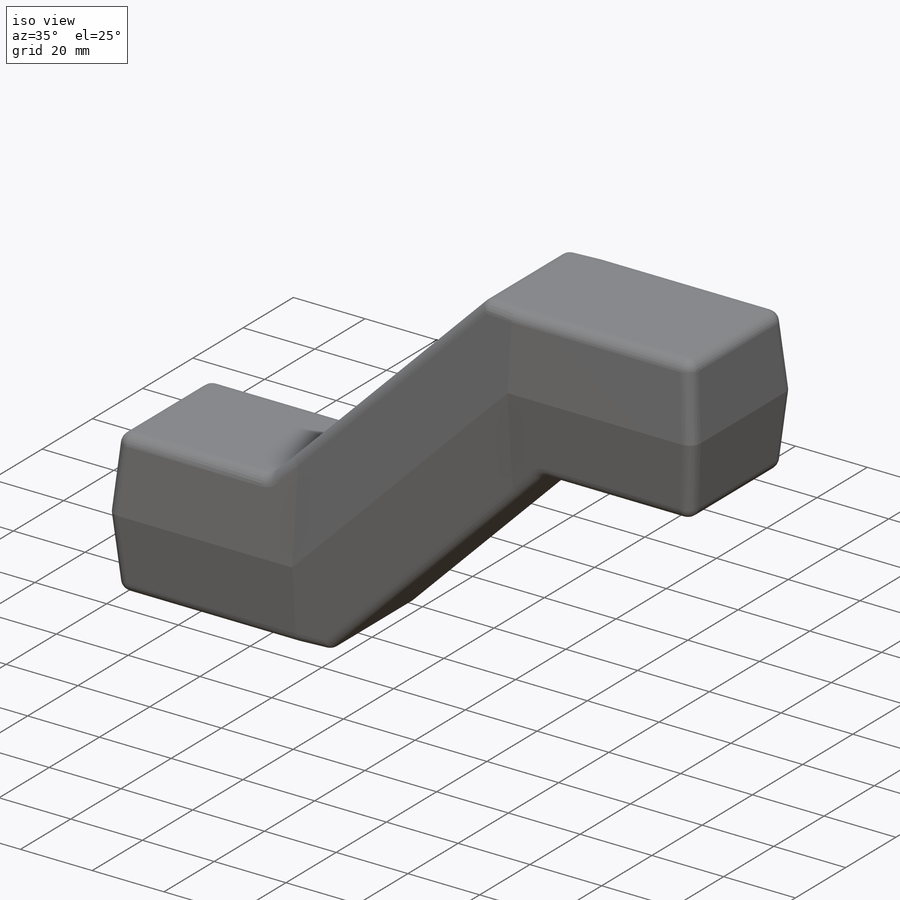
[diagram: iso view]
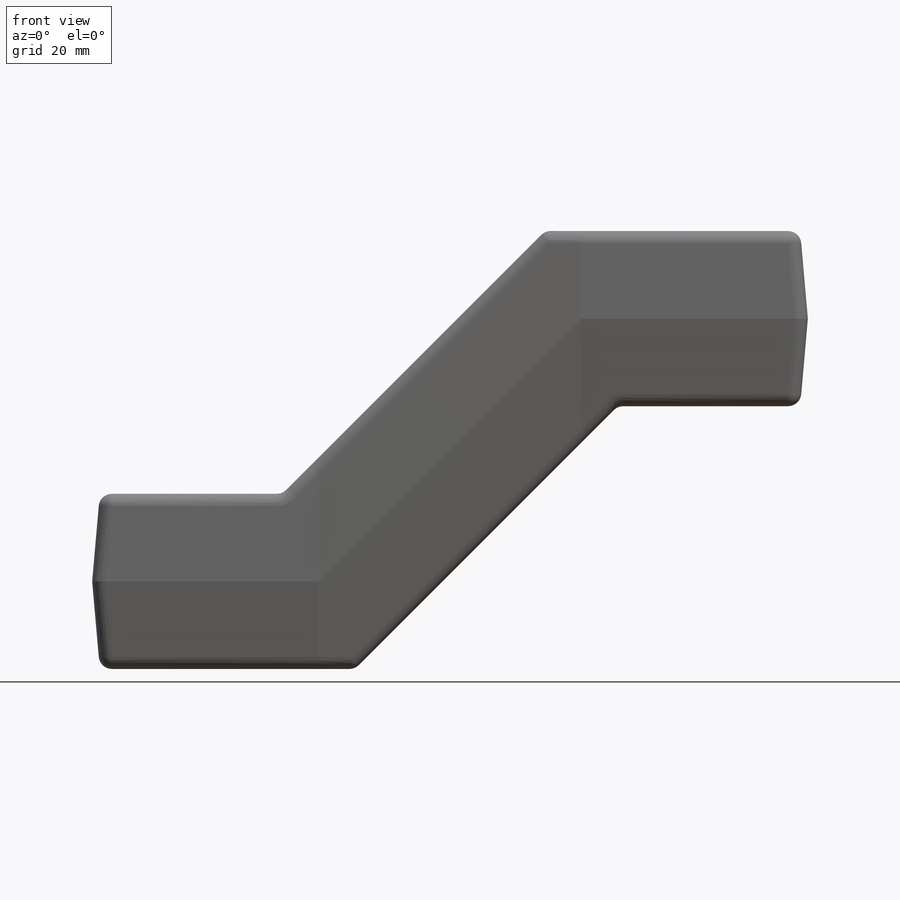
[diagram: front view]
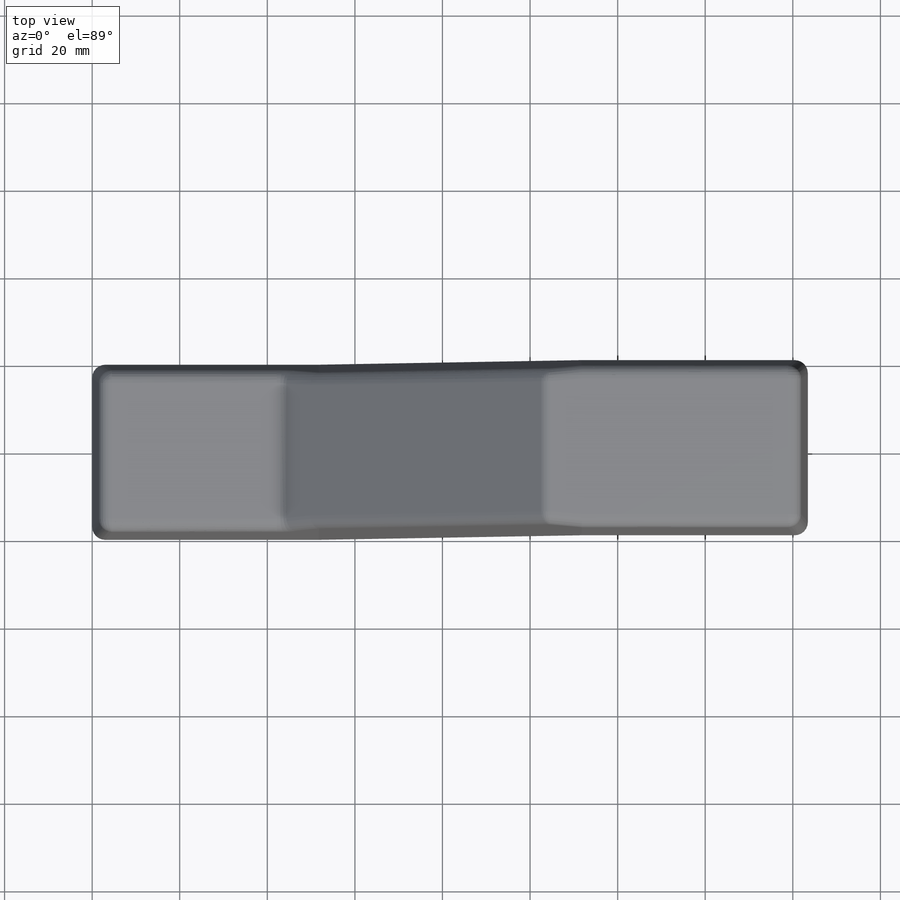
[diagram: top view]
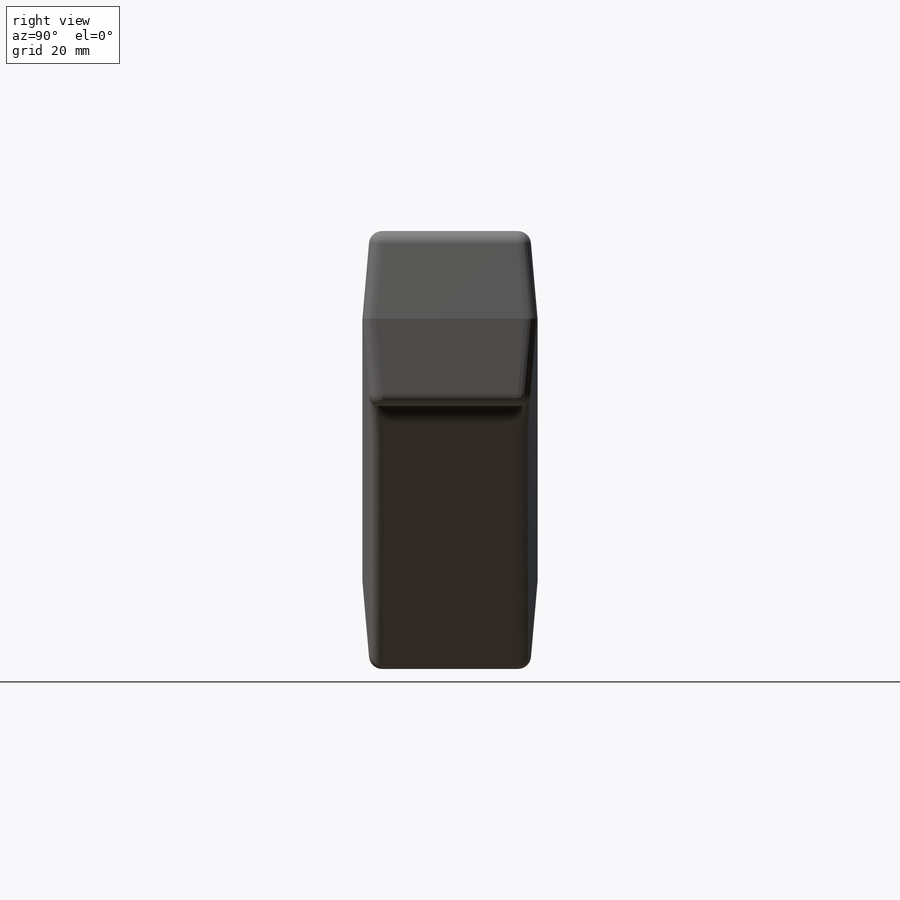
[diagram: right view]
SOLIDWORKS PART (.sldprt)
format: sldprt  version: not decoded by parser v0  size: 318,976 bytes
history: native  units: mm
features: fillet x4, plane x3, sketch x2, extrude x2, material x1 (+8 scaffold rows collapsed)
feature tree (20):
  scaffold x8  (default folders/planes/origin — collapsed)
  material  "Material <nicht festgelegt>"
  plane  "Ebene vorne"
  plane  "Ebene oben"
  plane  "Ebene rechts"
  sketch  "Skizze1"  dims[c1.D1=40.0mm c1.D2=40.0mm c1.D3=~48.57169mm c2.D3=~0.272715deg c3.D3=~41.103252mm c4.D3=135.0deg c4.D4=40.0mm c4.D5=60.0mm c4.D6=60.0mm c4.D7=60.0mm]
  extrude  "Aufsatz-Linear austragen1"  Depth=20mm
  sketch  "Skizze2"  dims[D1=5.0deg]
  extrude  "Formschräge2"  [1 undecoded]
  fillet  "Verrundung1"  Radius=3mm
  fillet  "Verrundung2"  Radius=3mm
  fillet  "Verrundung3"  Radius=3mm
  fillet  "Verrundung4"  Radius=3mm
decode coverage: 7 of 8 modeling features carry decoded parameters
note: ~ marks probable driven/reference dimensions
note: 1 parameter value undecoded
note: suppression state not decoded; provenance and decode notes live in map.json
